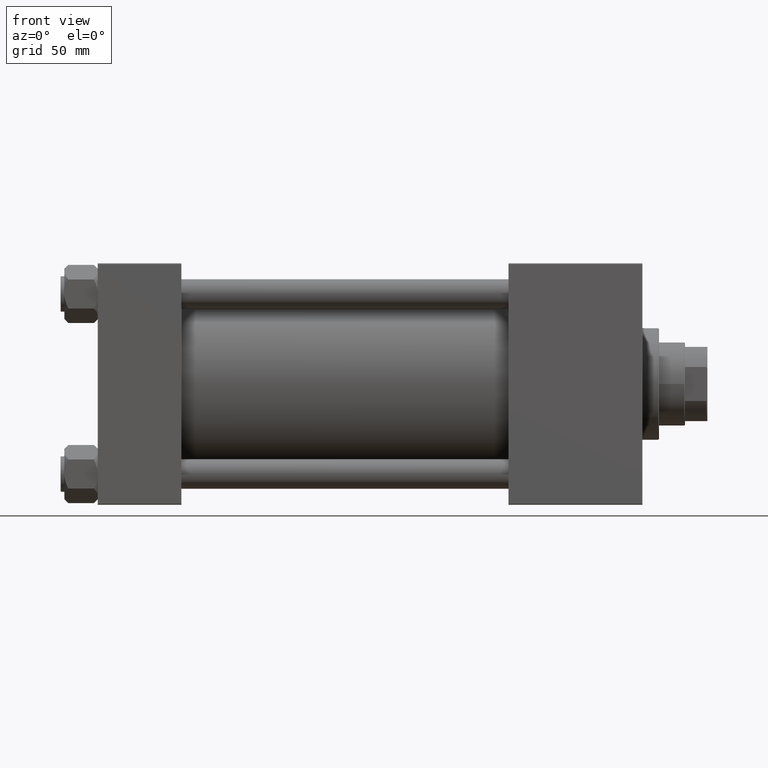
[diagram: clean part render]
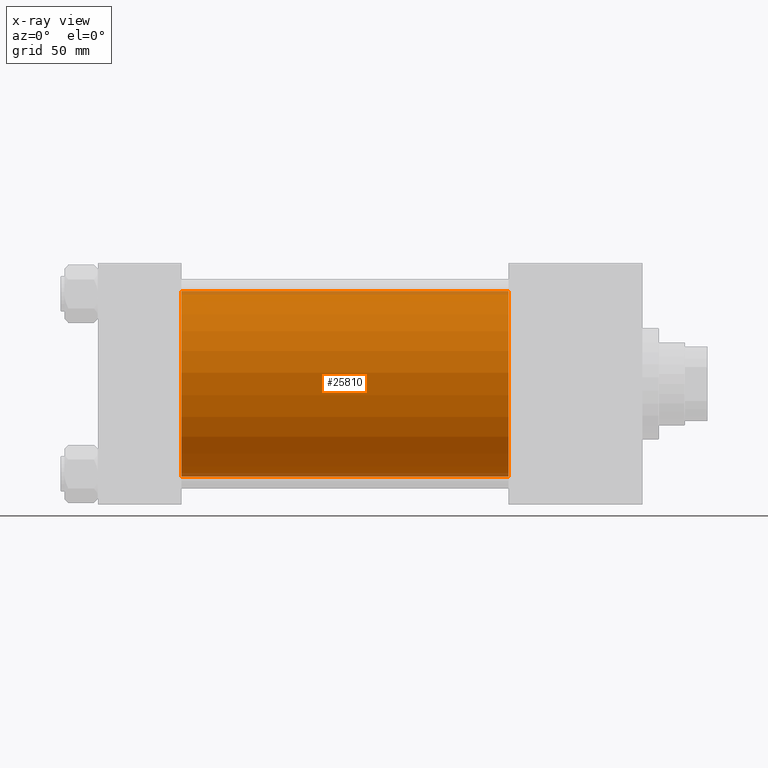
[diagram: x-ray — body ghosted, one internal face saturated and labeled with its STEP entity id]
A machine part, front view, then the same camera in x-ray: the body is ghosted and one INTERNAL B-rep face — a face not visible from any outside direction — is saturated and labeled: STEP entity #25810.
In plain terms, the highlighted cylindrical surface (partial cylindrical patch) has radius 50 mm, axis along (-1, -0, -0).
Its self-contained STEP definition (entity closure, byte-faithful):
#2961 = CARTESIAN_POINT ( 'NONE',  ( 45.00000000000000000, -2.602085213965210642E-15, 50.00000000000000000 ) ) ;
#2971 = CARTESIAN_POINT ( 'NONE',  ( 220.9999999999999716, -2.602085213965210642E-15, 0.000000000000000000 ) ) ;
#3744 = VERTEX_POINT ( 'NONE', #31249 ) ;
#5095 = DIRECTION ( 'NONE',  ( 0.000000000000000000, 0.000000000000000000, -1.000000000000000000 ) ) ;
#5208 = EDGE_CURVE ( 'NONE', #46355, #37577, #31348, .T. ) ;
#5345 = ORIENTED_EDGE ( 'NONE', *, *, #48608, .T. ) ;
#8946 = DIRECTION ( 'NONE',  ( 1.000000000000000000, 0.000000000000000000, 0.000000000000000000 ) ) ;
#12367 = EDGE_LOOP ( 'NONE', ( #25918, #5345, #45034, #30419 ) ) ;
#12806 = CARTESIAN_POINT ( 'NONE',  ( 45.00000000000000000, -2.602085213965210642E-15, 0.000000000000000000 ) ) ;
#14857 = VERTEX_POINT ( 'NONE', #30987 ) ;
#15621 = LINE ( 'NONE', #26946, #19977 ) ;
#19730 = DIRECTION ( 'NONE',  ( -1.000000000000000000, -0.000000000000000000, -0.000000000000000000 ) ) ;
#19977 = VECTOR ( 'NONE', #19730, 1000.000000000000000 ) ;
#20521 = CARTESIAN_POINT ( 'NONE',  ( 220.9999999999999716, -2.602085213965210642E-15, 0.000000000000000000 ) ) ;
#25078 = LINE ( 'NONE', #37398, #26269 ) ;
#25810 = ADVANCED_FACE ( 'NONE', ( #26863 ), #49227, .F. ) ;
#25918 = ORIENTED_EDGE ( 'NONE', *, *, #39846, .T. ) ;
#26269 = VECTOR ( 'NONE', #35224, 1000.000000000000000 ) ;
#26863 = FACE_OUTER_BOUND ( 'NONE', #12367, .T. ) ;
#26946 = CARTESIAN_POINT ( 'NONE',  ( 220.9999999999999716, 3.521148781771555838E-15, -50.00000000000000000 ) ) ;
#29295 = CARTESIAN_POINT ( 'NONE',  ( 45.00000000000000000, 3.521148781771555838E-15, -50.00000000000000000 ) ) ;
#29705 = DIRECTION ( 'NONE',  ( -1.000000000000000000, -0.000000000000000000, -0.000000000000000000 ) ) ;
#30419 = ORIENTED_EDGE ( 'NONE', *, *, #35358, .F. ) ;
#30987 = CARTESIAN_POINT ( 'NONE',  ( 220.9999999999999716, 3.521148781771555838E-15, -50.00000000000000000 ) ) ;
#31249 = CARTESIAN_POINT ( 'NONE',  ( 220.9999999999999716, -2.602085213965210642E-15, 50.00000000000000000 ) ) ;
#31348 = CIRCLE ( 'NONE', #45315, 50.00000000000000000 ) ;
#32330 = DIRECTION ( 'NONE',  ( 0.000000000000000000, 0.000000000000000000, -1.000000000000000000 ) ) ;
#35224 = DIRECTION ( 'NONE',  ( -1.000000000000000000, -0.000000000000000000, -0.000000000000000000 ) ) ;
#35358 = EDGE_CURVE ( 'NONE', #3744, #46355, #25078, .T. ) ;
#37398 = CARTESIAN_POINT ( 'NONE',  ( 220.9999999999999716, -2.602085213965210642E-15, 50.00000000000000000 ) ) ;
#37577 = VERTEX_POINT ( 'NONE', #29295 ) ;
#37670 = DIRECTION ( 'NONE',  ( 0.000000000000000000, 0.000000000000000000, 1.000000000000000000 ) ) ;
#39846 = EDGE_CURVE ( 'NONE', #3744, #14857, #44259, .T. ) ;
#41087 = DIRECTION ( 'NONE',  ( 1.000000000000000000, 0.000000000000000000, 0.000000000000000000 ) ) ;
#42473 = AXIS2_PLACEMENT_3D ( 'NONE', #2971, #29705, #37670 ) ;
#42660 = AXIS2_PLACEMENT_3D ( 'NONE', #20521, #41087, #32330 ) ;
#44259 = CIRCLE ( 'NONE', #42660, 50.00000000000000000 ) ;
#45034 = ORIENTED_EDGE ( 'NONE', *, *, #5208, .F. ) ;
#45315 = AXIS2_PLACEMENT_3D ( 'NONE', #12806, #8946, #5095 ) ;
#46355 = VERTEX_POINT ( 'NONE', #2961 ) ;
#48608 = EDGE_CURVE ( 'NONE', #14857, #37577, #15621, .T. ) ;
#49227 = CYLINDRICAL_SURFACE ( 'NONE', #42473, 50.00000000000000000 ) ;